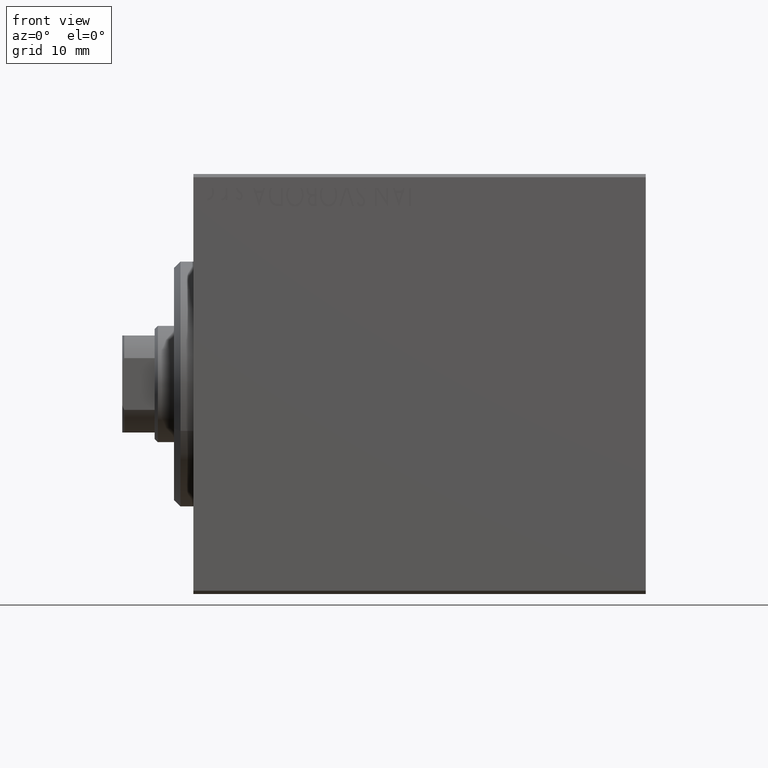
[diagram: clean part render]
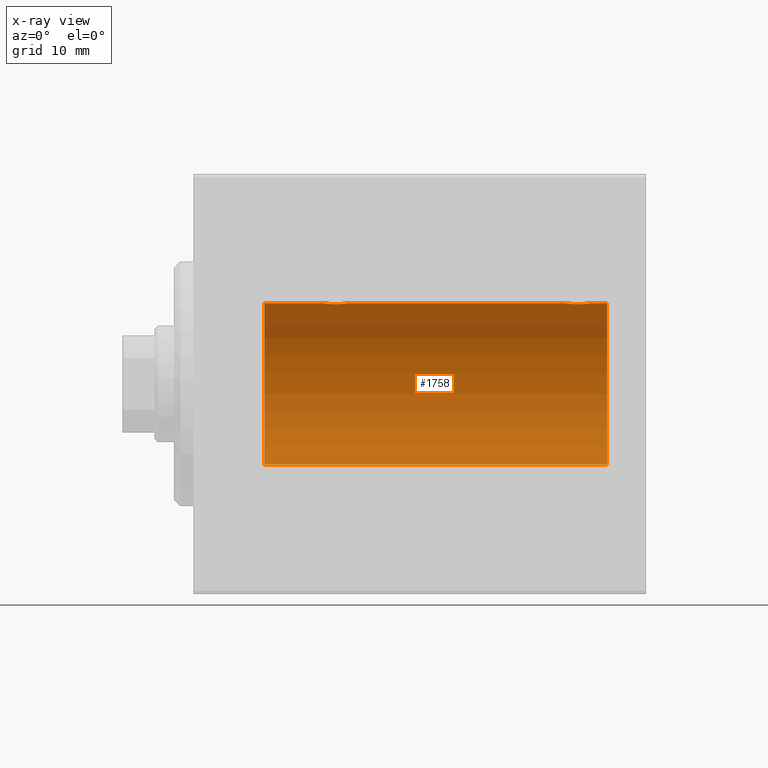
[diagram: x-ray — body ghosted, one internal face saturated and labeled with its STEP entity id]
A machine part, front view, then the same camera in x-ray: the body is ghosted and one INTERNAL B-rep face — a face not visible from any outside direction — is saturated and labeled: STEP entity #1758.
In plain terms, the highlighted cylindrical surface (partial cylindrical patch) has radius 12.5 mm, axis along (-1, -0, -0).
Its self-contained STEP definition (entity closure, byte-faithful):
#448 = CARTESIAN_POINT ( 'NONE',  ( 61.29699211628619793, 0.8876934327478148701, 12.46903010196599659 ) ) ;
#814 = CARTESIAN_POINT ( 'NONE',  ( 20.41008591319371490, 1.220297236145720277, 12.44076681548080288 ) ) ;
#829 = ORIENTED_EDGE ( 'NONE', *, *, #15362, .T. ) ;
#1094 = CARTESIAN_POINT ( 'NONE',  ( 61.50000000000000711, 0.1323736289504353347, 12.50000000000000178 ) ) ;
#1758 = ADVANCED_FACE ( 'NONE', ( #41215 ), #37019, .F. ) ;
#2766 = DIRECTION ( 'NONE',  ( -1.000000000000000000, -0.000000000000000000, -0.000000000000000000 ) ) ;
#2938 = DIRECTION ( 'NONE',  ( 0.000000000000000000, 0.000000000000000000, 1.000000000000000000 ) ) ;
#3499 = CARTESIAN_POINT ( 'NONE',  ( 22.26211806331624743, 1.999901172190676757, 12.33897869807161563 ) ) ;
#3635 = VERTEX_POINT ( 'NONE', #42601 ) ;
#3782 = CARTESIAN_POINT ( 'NONE',  ( 58.49664185700819274, 1.734998657226764163, 12.37922086519035858 ) ) ;
#3940 = CARTESIAN_POINT ( 'NONE',  ( 21.35584766229706588, 1.897967064543088833, 12.35517291625592051 ) ) ;
#4000 = CARTESIAN_POINT ( 'NONE',  ( 58.98062649148444336, 1.935814255713572241, 12.34922241902463291 ) ) ;
#4155 = CARTESIAN_POINT ( 'NONE',  ( 23.73553255438136134, 1.002494658017157647, 12.46021263690096958 ) ) ;
#4505 = ORIENTED_EDGE ( 'NONE', *, *, #32040, .T. ) ;
#6154 = VERTEX_POINT ( 'NONE', #37344 ) ;
#6615 = CARTESIAN_POINT ( 'NONE',  ( 20.10226968606341558, 0.6448065707253003431, 12.48394649977302073 ) ) ;
#6637 = AXIS2_PLACEMENT_3D ( 'NONE', #19875, #10081, #24301 ) ;
#6839 = CARTESIAN_POINT ( 'NONE',  ( 23.93604351777363348, 0.5184196815546062709, 12.48990118705761532 ) ) ;
#7333 = CARTESIAN_POINT ( 'NONE',  ( 61.50000000000000711, -7.215738317004035941E-16, 12.50000000000000000 ) ) ;
#7590 = ORIENTED_EDGE ( 'NONE', *, *, #13401, .T. ) ;
#8256 = DIRECTION ( 'NONE',  ( 0.000000000000000000, 0.000000000000000000, 1.000000000000000000 ) ) ;
#8642 = CARTESIAN_POINT ( 'NONE',  ( 57.51309615233746086, 0.2633501011236094591, 12.49788564268283864 ) ) ;
#8909 = ORIENTED_EDGE ( 'NONE', *, *, #14564, .T. ) ;
#9326 = CARTESIAN_POINT ( 'NONE',  ( 24.00000000000000000, -4.527848004210791175E-16, 12.50000000000000000 ) ) ;
#9837 = VERTEX_POINT ( 'NONE', #9326 ) ;
#10081 = DIRECTION ( 'NONE',  ( -1.000000000000000000, -0.000000000000000000, -0.000000000000000000 ) ) ;
#10521 = CARTESIAN_POINT ( 'NONE',  ( 64.00000000000000000, 0.000000000000000000, 12.50000000000000000 ) ) ;
#10606 = CARTESIAN_POINT ( 'NONE',  ( 23.79699211628616240, 0.8876934327478146480, 12.46903010196599304 ) ) ;
#10669 = CARTESIAN_POINT ( 'NONE',  ( 57.99266449635677390, 1.321095788880536581, 12.43034574091277733 ) ) ;
#11994 = CARTESIAN_POINT ( 'NONE',  ( 57.91008591319372556, 1.220297236145716946, 12.44076681548080288 ) ) ;
#13401 = EDGE_CURVE ( 'NONE', #3635, #9837, #39164, .T. ) ;
#13503 = CARTESIAN_POINT ( 'NONE',  ( 21.11343686466984693, 1.797558627508996532, 12.37018026341339194 ) ) ;
#14466 = ORIENTED_EDGE ( 'NONE', *, *, #36097, .F. ) ;
#14564 = EDGE_CURVE ( 'NONE', #30559, #3635, #29173, .T. ) ;
#14661 = CARTESIAN_POINT ( 'NONE',  ( 61.09036680009405984, 1.219754986802282115, 12.44082361696003147 ) ) ;
#14876 = CARTESIAN_POINT ( 'NONE',  ( 60.50683120447499164, 1.747608771958137908, 12.37764291807175354 ) ) ;
#15362 = EDGE_CURVE ( 'NONE', #9837, #30549, #42965, .T. ) ;
#15451 = ORIENTED_EDGE ( 'NONE', *, *, #39369, .T. ) ;
#15611 = ORIENTED_EDGE ( 'NONE', *, *, #19173, .F. ) ;
#15987 = CARTESIAN_POINT ( 'NONE',  ( 61.50000000000000711, -7.215738317004035941E-16, 12.50000000000000000 ) ) ;
#16206 = VERTEX_POINT ( 'NONE', #22809 ) ;
#16328 = LINE ( 'NONE', #33256, #41020 ) ;
#16850 = CARTESIAN_POINT ( 'NONE',  ( 20.06438225478150628, 0.5201193324741335555, 12.48983485452575337 ) ) ;
#17065 = CARTESIAN_POINT ( 'NONE',  ( 20.01309615233744310, 0.2633501011236105693, 12.49788564268283864 ) ) ;
#17208 = CIRCLE ( 'NONE', #24994, 12.50000000000000000 ) ;
#17286 = CARTESIAN_POINT ( 'NONE',  ( 23.98698791483650794, 0.2624928479599913378, 12.49789934882883458 ) ) ;
#17351 = CARTESIAN_POINT ( 'NONE',  ( 58.28019209405419332, 1.590288205413972866, 12.39864157855464732 ) ) ;
#17417 = DIRECTION ( 'NONE',  ( -1.000000000000000000, -0.000000000000000000, -0.000000000000000000 ) ) ;
#17717 = CARTESIAN_POINT ( 'NONE',  ( 20.99664185700817498, 1.734998657226762386, 12.37922086519035680 ) ) ;
#17782 = CARTESIAN_POINT ( 'NONE',  ( 10.99999999999999645, 1.530808498934191521E-15, -12.50000000000000000 ) ) ;
#18688 = AXIS2_PLACEMENT_3D ( 'NONE', #33425, #30518, #2938 ) ;
#18861 = VERTEX_POINT ( 'NONE', #20816 ) ;
#19173 = EDGE_CURVE ( 'NONE', #16206, #24279, #16328, .T. ) ;
#19875 = CARTESIAN_POINT ( 'NONE',  ( 64.00000000000000000, 0.000000000000000000, 0.000000000000000000 ) ) ;
#20186 = CARTESIAN_POINT ( 'NONE',  ( 20.78019209405420042, 1.590288205413970646, 12.39864157855465088 ) ) ;
#20407 = CARTESIAN_POINT ( 'NONE',  ( 22.52563587170489967, 1.947190906025044299, 12.34781876294798408 ) ) ;
#20683 = CARTESIAN_POINT ( 'NONE',  ( 61.00601633672791024, 1.322451657002079006, 12.43019346654084956 ) ) ;
#20816 = CARTESIAN_POINT ( 'NONE',  ( 10.99999999999999645, 0.000000000000000000, 12.50000000000000000 ) ) ;
#20837 = CARTESIAN_POINT ( 'NONE',  ( 23.59036680009404918, 1.219754986802281005, 12.44082361696003325 ) ) ;
#22214 = CARTESIAN_POINT ( 'NONE',  ( 57.50000000000000000, -7.266434456262306043E-23, 12.50000000000000000 ) ) ;
#22259 = ORIENTED_EDGE ( 'NONE', *, *, #25138, .T. ) ;
#22809 = CARTESIAN_POINT ( 'NONE',  ( 64.00000000000000000, 1.530808498934191521E-15, -12.50000000000000000 ) ) ;
#23513 = CARTESIAN_POINT ( 'NONE',  ( 20.26529257602389222, 1.003863686549171019, 12.46009879577771606 ) ) ;
#23736 = CARTESIAN_POINT ( 'NONE',  ( 24.00000000000000000, -4.527848004210791175E-16, 12.50000000000000000 ) ) ;
#24279 = VERTEX_POINT ( 'NONE', #17782 ) ;
#24301 = DIRECTION ( 'NONE',  ( 0.000000000000000000, 0.000000000000000000, 1.000000000000000000 ) ) ;
#24387 = CARTESIAN_POINT ( 'NONE',  ( 23.50601633672791735, 1.322451657002076786, 12.43019346654085311 ) ) ;
#24881 = CARTESIAN_POINT ( 'NONE',  ( 61.48698791483653281, 0.2624928479599922815, 12.49789934882883458 ) ) ;
#24994 = AXIS2_PLACEMENT_3D ( 'NONE', #32070, #35642, #8256 ) ;
#25103 = CARTESIAN_POINT ( 'NONE',  ( 60.02563587170491388, 1.947190906025042967, 12.34781876294798408 ) ) ;
#25138 = EDGE_CURVE ( 'NONE', #30549, #18861, #42531, .T. ) ;
#25331 = CARTESIAN_POINT ( 'NONE',  ( 57.76529257602388157, 1.003863686549167022, 12.46009879577771429 ) ) ;
#25550 = CARTESIAN_POINT ( 'NONE',  ( 57.60226968606340847, 0.6448065707253002321, 12.48394649977301540 ) ) ;
#25800 = CIRCLE ( 'NONE', #18688, 12.50000000000000000 ) ;
#27073 = CARTESIAN_POINT ( 'NONE',  ( 19.99999999999999645, -7.265724481447607133E-23, 12.50000000000000000 ) ) ;
#27298 = CARTESIAN_POINT ( 'NONE',  ( 23.89747729701804602, 0.6455696738844928229, 12.48390768591463207 ) ) ;
#27581 = CARTESIAN_POINT ( 'NONE',  ( 58.17897166499302841, 1.507394620545639219, 12.40913174964213539 ) ) ;
#27942 = CARTESIAN_POINT ( 'NONE',  ( 20.49266449635678100, 1.321095788880537247, 12.43034574091277911 ) ) ;
#28006 = CARTESIAN_POINT ( 'NONE',  ( 61.23553255438137910, 1.002494658017159423, 12.46021263690096958 ) ) ;
#28444 = CARTESIAN_POINT ( 'NONE',  ( 59.76211806331624388, 1.999901172190677201, 12.33897869807161385 ) ) ;
#28959 = CARTESIAN_POINT ( 'NONE',  ( 64.00000000000000000, 0.000000000000000000, 12.50000000000000000 ) ) ;
#29110 = CARTESIAN_POINT ( 'NONE',  ( 57.70257508083844300, 0.8868029758979379951, 12.46909283808506430 ) ) ;
#29173 = B_SPLINE_CURVE_WITH_KNOTS ( 'NONE', 3,
 ( #7333, #1094, #24881, #38456, #41796, #448, #28006, #14661, #20683, #34489, #14876, #25103, #28444, #42013, #38682, #4000, #41147, #34275, #3782, #17351, #27581, #10669, #11994, #25331, #29110, #25550, #39122, #8642, #32240, #22214 ),
 .UNSPECIFIED., .F., .F.,
 ( 4, 2, 2, 2, 2, 2, 2, 2, 2, 2, 2, 2, 2, 2, 4 ),
 ( 7.010636526547347862E-19, 0.0003914362731607671695, 0.0007828725463215335800, 0.001174308819482300153, 0.001565745092643066510, 0.002348617638964585128, 0.003131490185286103529, 0.003522926458446862079, 0.003914362731607621063, 0.004305799004768380046, 0.004697235277929138163, 0.005088671551089898014, 0.005480107824250656998, 0.005871544097411415114, 0.006262980370572174098 ),
 .UNSPECIFIED. ) ;
#29373 = DIRECTION ( 'NONE',  ( -1.000000000000000000, -0.000000000000000000, -0.000000000000000000 ) ) ;
#30518 = DIRECTION ( 'NONE',  ( -1.000000000000000000, 0.000000000000000000, 0.000000000000000000 ) ) ;
#30549 = VERTEX_POINT ( 'NONE', #32684 ) ;
#30559 = VERTEX_POINT ( 'NONE', #15987 ) ;
#30635 = CARTESIAN_POINT ( 'NONE',  ( 20.00000000000000000, 0.1306394121199368485, 12.50000000000000000 ) ) ;
#30863 = CARTESIAN_POINT ( 'NONE',  ( 21.48062649148445402, 1.935814255713573351, 12.34922241902463114 ) ) ;
#31295 = CARTESIAN_POINT ( 'NONE',  ( 20.67897166499301775, 1.507394620545639441, 12.40913174964213361 ) ) ;
#31599 = EDGE_LOOP ( 'NONE', ( #15611, #14466, #4505, #8909, #7590, #829, #22259, #15451 ) ) ;
#32040 = EDGE_CURVE ( 'NONE', #6154, #30559, #37012, .T. ) ;
#32070 = CARTESIAN_POINT ( 'NONE',  ( 64.00000000000000000, 0.000000000000000000, 0.000000000000000000 ) ) ;
#32240 = CARTESIAN_POINT ( 'NONE',  ( 57.50000000000000000, 0.1306394121199370428, 12.50000000000000000 ) ) ;
#32684 = CARTESIAN_POINT ( 'NONE',  ( 19.99999999999999645, -7.265724481447607133E-23, 12.50000000000000000 ) ) ;
#33256 = CARTESIAN_POINT ( 'NONE',  ( 64.00000000000000000, 1.530808498934191521E-15, -12.50000000000000000 ) ) ;
#33425 = CARTESIAN_POINT ( 'NONE',  ( 10.99999999999999645, 0.000000000000000000, 0.000000000000000000 ) ) ;
#34275 = CARTESIAN_POINT ( 'NONE',  ( 58.61343686466983627, 1.797558627508994089, 12.37018026341338484 ) ) ;
#34429 = CARTESIAN_POINT ( 'NONE',  ( 21.87007370639734916, 2.000049200055400878, 12.33895470450623044 ) ) ;
#34489 = CARTESIAN_POINT ( 'NONE',  ( 60.72966493873149574, 1.598680238462370617, 12.39873273758732353 ) ) ;
#35410 = CARTESIAN_POINT ( 'NONE',  ( 64.00000000000000000, 0.000000000000000000, 12.50000000000000000 ) ) ;
#35642 = DIRECTION ( 'NONE',  ( -1.000000000000000000, 0.000000000000000000, 0.000000000000000000 ) ) ;
#35651 = DIRECTION ( 'NONE',  ( -1.000000000000000000, -0.000000000000000000, -0.000000000000000000 ) ) ;
#36097 = EDGE_CURVE ( 'NONE', #6154, #16206, #17208, .T. ) ;
#37012 = LINE ( 'NONE', #10521, #37728 ) ;
#37019 = CYLINDRICAL_SURFACE ( 'NONE', #6637, 12.50000000000000000 ) ;
#37103 = CARTESIAN_POINT ( 'NONE',  ( 20.20257508083844300, 0.8868029758979382171, 12.46909283808506430 ) ) ;
#37344 = CARTESIAN_POINT ( 'NONE',  ( 64.00000000000000000, 0.000000000000000000, 12.50000000000000000 ) ) ;
#37728 = VECTOR ( 'NONE', #17417, 1000.000000000000000 ) ;
#37975 = CARTESIAN_POINT ( 'NONE',  ( 23.22966493873148863, 1.598680238462369507, 12.39873273758732353 ) ) ;
#38456 = CARTESIAN_POINT ( 'NONE',  ( 61.43604351777364059, 0.5184196815546071591, 12.48990118705761354 ) ) ;
#38682 = CARTESIAN_POINT ( 'NONE',  ( 59.23730537545403507, 1.986986967296537676, 12.34109209020652820 ) ) ;
#39122 = CARTESIAN_POINT ( 'NONE',  ( 57.56438225478149917, 0.5201193324741324453, 12.48983485452574982 ) ) ;
#39164 = LINE ( 'NONE', #35410, #40183 ) ;
#39369 = EDGE_CURVE ( 'NONE', #18861, #24279, #25800, .T. ) ;
#40183 = VECTOR ( 'NONE', #29373, 1000.000000000000000 ) ;
#41020 = VECTOR ( 'NONE', #2766, 1000.000000000000000 ) ;
#41147 = CARTESIAN_POINT ( 'NONE',  ( 58.85584766229707299, 1.897967064543087279, 12.35517291625592229 ) ) ;
#41215 = FACE_OUTER_BOUND ( 'NONE', #31599, .T. ) ;
#41297 = CARTESIAN_POINT ( 'NONE',  ( 24.00000000000000355, 0.1323736289504353625, 12.50000000000000000 ) ) ;
#41515 = CARTESIAN_POINT ( 'NONE',  ( 21.73730537545402086, 1.986986967296538564, 12.34109209020652465 ) ) ;
#41796 = CARTESIAN_POINT ( 'NONE',  ( 61.39747729701806378, 0.6455696738844931559, 12.48390768591463384 ) ) ;
#42013 = CARTESIAN_POINT ( 'NONE',  ( 59.37007370639736337, 2.000049200055400878, 12.33895470450623222 ) ) ;
#42531 = LINE ( 'NONE', #28959, #43309 ) ;
#42601 = CARTESIAN_POINT ( 'NONE',  ( 57.50000000000000000, -7.266434456262306043E-23, 12.50000000000000000 ) ) ;
#42965 = B_SPLINE_CURVE_WITH_KNOTS ( 'NONE', 3,
 ( #23736, #41297, #17286, #6839, #27298, #10606, #4155, #20837, #24387, #37975, #43982, #20407, #3499, #34429, #41515, #30863, #3940, #13503, #17717, #20186, #31295, #27942, #814, #23513, #37103, #6615, #16850, #17065, #30635, #27073 ),
 .UNSPECIFIED., .F., .F.,
 ( 4, 2, 2, 2, 2, 2, 2, 2, 2, 2, 2, 2, 2, 2, 4 ),
 ( 4.399147420600248434E-19, 0.0003914362731607583874, 0.0007828725463215163412, 0.001174308819482274349, 0.001565745092643032249, 0.002348617638964548265, 0.003131490185286064497, 0.003522926458446828252, 0.003914362731607592440, 0.004305799004768355760, 0.004697235277929119081, 0.005088671551089882401, 0.005480107824250645722, 0.005871544097411409910, 0.006262980370572172363 ),
 .UNSPECIFIED. ) ;
#43309 = VECTOR ( 'NONE', #35651, 1000.000000000000000 ) ;
#43982 = CARTESIAN_POINT ( 'NONE',  ( 23.00683120447499519, 1.747608771958141016, 12.37764291807175887 ) ) ;